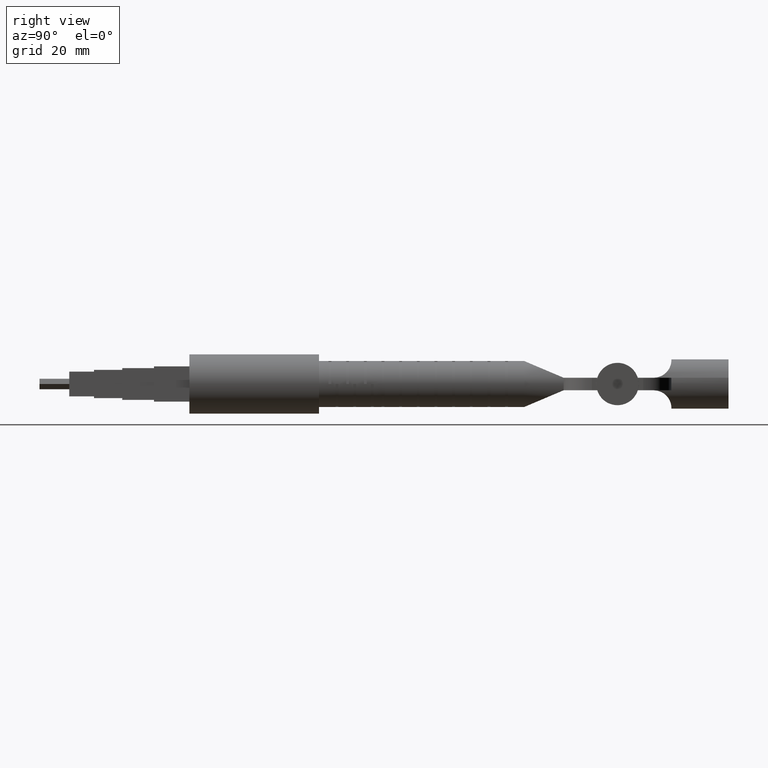
[diagram: clean part render]
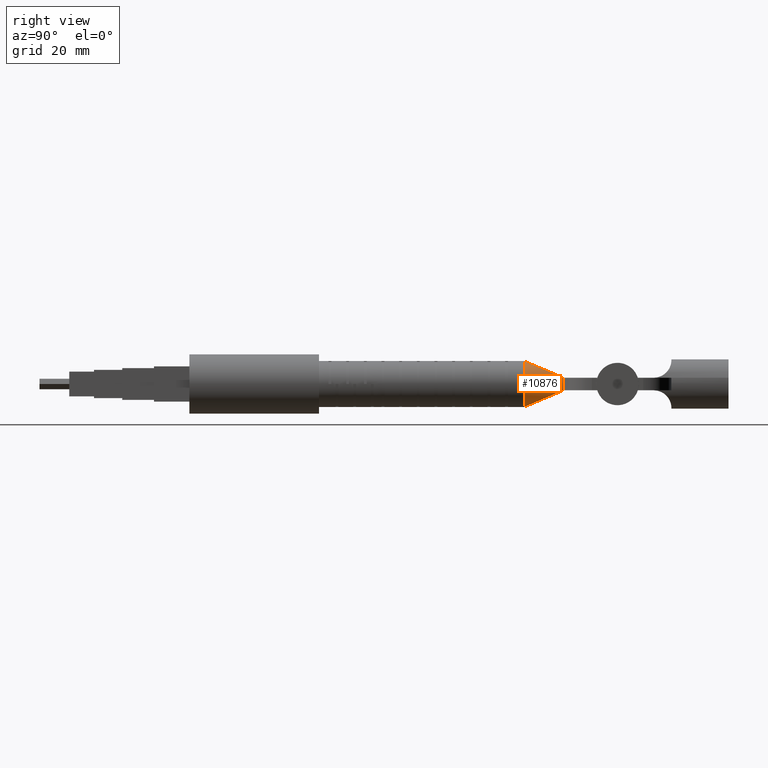
[diagram: same view with one face highlighted and labeled with its STEP entity id]
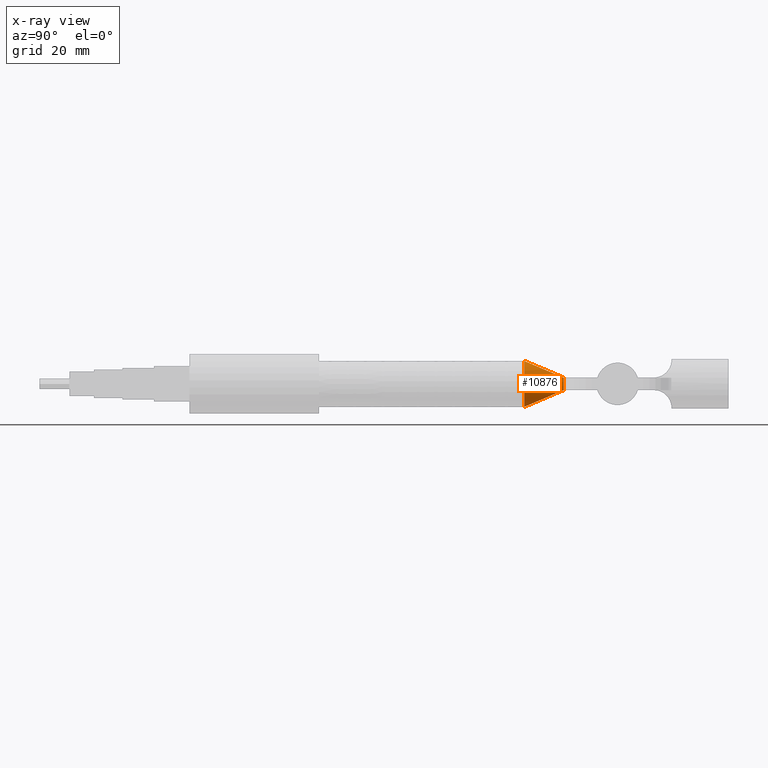
[diagram: x-ray of the same camera — body ghosted, the highlighted face saturated]
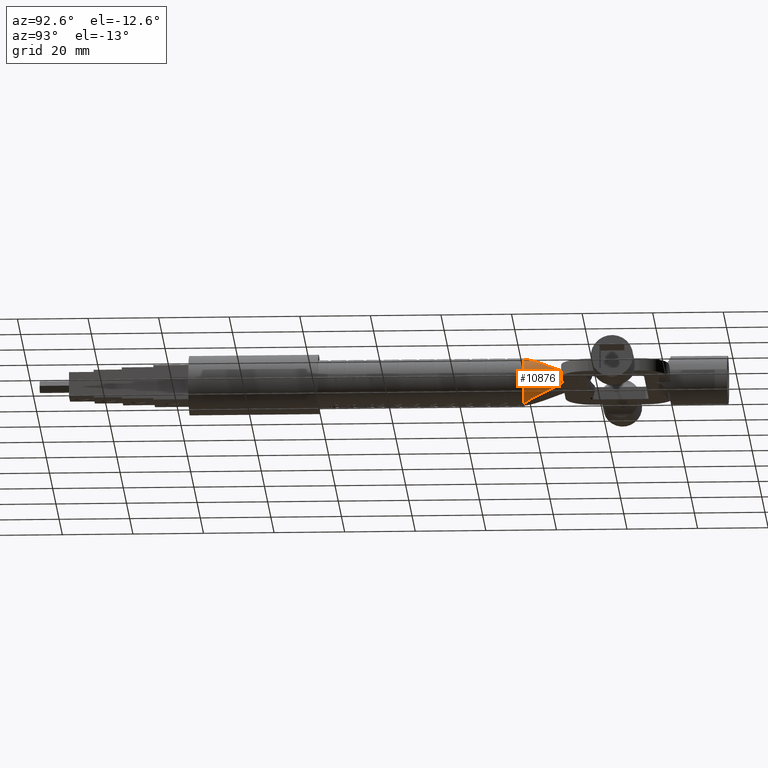
[diagram: same view with one face highlighted and labeled with its STEP entity id]
A machine part, right view. The second image highlights one B-rep face of the part: STEP entity #10876.
The next image is the same camera in x-ray: the body ghosted, the highlighted face saturated — about 0% of this face is hidden behind the body in this view.
A second angle (auxiliary view) of the same face is appended — the face is thin or edge-on in the first view.
In plain terms, the highlighted cylindrical surface (edge-blend (fillet) strip) has radius 6.5 mm, axis along (-0, -1, -0).
Its self-contained STEP definition (entity closure, byte-faithful):
#454 = FACE_OUTER_BOUND ( 'NONE', #38867, .T. ) ;
#1111 = VERTEX_POINT ( 'NONE', #34377 ) ;
#3967 = DIRECTION ( 'NONE',  ( 0.000000000000000000, 0.000000000000000000, 1.000000000000000000 ) ) ;
#4483 = CARTESIAN_POINT ( 'NONE',  ( 6.252949304128414099, 148.3500000000000227, -1.774999999999999911 ) ) ;
#5892 = VERTEX_POINT ( 'NONE', #7501 ) ;
#6627 = EDGE_CURVE ( 'NONE', #45563, #1111, #39646, .T. ) ;
#6815 = ORIENTED_EDGE ( 'NONE', *, *, #33614, .T. ) ;
#7501 = CARTESIAN_POINT ( 'NONE',  ( 0.000000000000000000, 137.2000000000000171, -6.499999999999999112 ) ) ;
#10876 = ADVANCED_FACE ( 'NONE', ( #454 ), #32314, .T. ) ;
#10972 = CARTESIAN_POINT ( 'NONE',  ( 6.252949304128414099, 148.3500000000000227, -1.774999999999999911 ) ) ;
#11574 = EDGE_CURVE ( 'NONE', #45563, #36177, #12415, .T. ) ;
#11605 = CARTESIAN_POINT ( 'NONE',  ( 6.252949304128410546, 148.3500000000000227, 1.774999999999999911 ) ) ;
#11771 = CARTESIAN_POINT ( 'NONE',  ( 0.000000000000000000, 148.3500000000000227, 0.000000000000000000 ) ) ;
#11909 = DIRECTION ( 'NONE',  ( 0.000000000000000000, 0.000000000000000000, 1.000000000000000000 ) ) ;
#12415 = CIRCLE ( 'NONE', #38924, 6.500000000000000888 ) ;
#14407 = ORIENTED_EDGE ( 'NONE', *, *, #11574, .F. ) ;
#15519 = CARTESIAN_POINT ( 'NONE',  ( 0.000000000000000000, 137.2000000000000171, 6.499999999999999112 ) ) ;
#17183 = DIRECTION ( 'NONE',  ( 0.000000000000000000, 0.000000000000000000, -1.000000000000000000 ) ) ;
#20025 = ORIENTED_EDGE ( 'NONE', *, *, #43589, .T. ) ;
#20269 = DIRECTION ( 'NONE',  ( 0.000000000000000000, 1.000000000000000000, 0.000000000000000000 ) ) ;
#20398 = CARTESIAN_POINT ( 'NONE',  ( 0.000000000000000000, 137.2000000000000171, 0.000000000000000000 ) ) ;
#25476 = CARTESIAN_POINT ( 'NONE',  ( 6.252949304128410546, 148.3500000000000227, 1.774999999999999911 ) ) ;
#25633 = DIRECTION ( 'NONE',  ( -0.000000000000000000, -1.000000000000000000, -0.000000000000000000 ) ) ;
#27235 = AXIS2_PLACEMENT_3D ( 'NONE', #20398, #41142, #11909 ) ;
#28752 = AXIS2_PLACEMENT_3D ( 'NONE', #51062, #25633, #17183 ) ;
#32314 = CYLINDRICAL_SURFACE ( 'NONE', #28752, 6.500000000000000888 ) ;
#32339 = CARTESIAN_POINT ( 'NONE',  ( 5.428415297063945211, 141.4956200069037777, 4.679658786312094421 ) ) ;
#33614 = EDGE_CURVE ( 'NONE', #1111, #5892, #48934, .T. ) ;
#33760 = CARTESIAN_POINT ( 'NONE',  ( 0.000000000000000000, 137.2000000000000171, -6.499999999999999112 ) ) ;
#33872 =( BOUNDED_CURVE ( )  B_SPLINE_CURVE ( 3, ( #33760, #41897, #37832, #4483 ),
 .UNSPECIFIED., .F., .F. ) 
 B_SPLINE_CURVE_WITH_KNOTS ( ( 4, 4 ),
 ( 0.000000000000000000, 1.294206249922977614 ),
 .UNSPECIFIED. ) 
 CURVE ( )  GEOMETRIC_REPRESENTATION_ITEM ( )  RATIONAL_B_SPLINE_CURVE ( ( 1.000000000000000000, 0.8652224034466255986, 0.8652224034466255986, 1.000000000000000000 ) ) 
 REPRESENTATION_ITEM ( '' )  );
#34377 = CARTESIAN_POINT ( 'NONE',  ( 0.000000000000000000, 137.2000000000000171, 6.499999999999999112 ) ) ;
#36177 = VERTEX_POINT ( 'NONE', #10972 ) ;
#36598 = CARTESIAN_POINT ( 'NONE',  ( 3.019420307560011452, 137.2000000000000171, 6.500000000000000888 ) ) ;
#37832 = CARTESIAN_POINT ( 'NONE',  ( 5.428415297063951428, 141.4956200069037493, -4.679658786312091756 ) ) ;
#38867 = EDGE_LOOP ( 'NONE', ( #6815, #20025, #14407, #42409 ) ) ;
#38924 = AXIS2_PLACEMENT_3D ( 'NONE', #11771, #20269, #3967 ) ;
#39646 =( BOUNDED_CURVE ( )  B_SPLINE_CURVE ( 3, ( #11605, #32339, #36598, #15519 ),
 .UNSPECIFIED., .F., .F. ) 
 B_SPLINE_CURVE_WITH_KNOTS ( ( 4, 4 ),
 ( 4.988979057256610616, 6.283185307179586232 ),
 .UNSPECIFIED. ) 
 CURVE ( )  GEOMETRIC_REPRESENTATION_ITEM ( )  RATIONAL_B_SPLINE_CURVE ( ( 1.000000000000000000, 0.8652224034466260427, 0.8652224034466260427, 1.000000000000000000 ) ) 
 REPRESENTATION_ITEM ( '' )  );
#41142 = DIRECTION ( 'NONE',  ( 0.000000000000000000, 1.000000000000000000, 0.000000000000000000 ) ) ;
#41897 = CARTESIAN_POINT ( 'NONE',  ( 3.019420307560018557, 137.1999999999999886, -6.500000000000003553 ) ) ;
#42409 = ORIENTED_EDGE ( 'NONE', *, *, #6627, .T. ) ;
#43589 = EDGE_CURVE ( 'NONE', #5892, #36177, #33872, .T. ) ;
#45563 = VERTEX_POINT ( 'NONE', #25476 ) ;
#48934 = CIRCLE ( 'NONE', #27235, 6.500000000000000888 ) ;
#51062 = CARTESIAN_POINT ( 'NONE',  ( 0.000000000000000000, 148.3500000000000227, 0.000000000000000000 ) ) ;